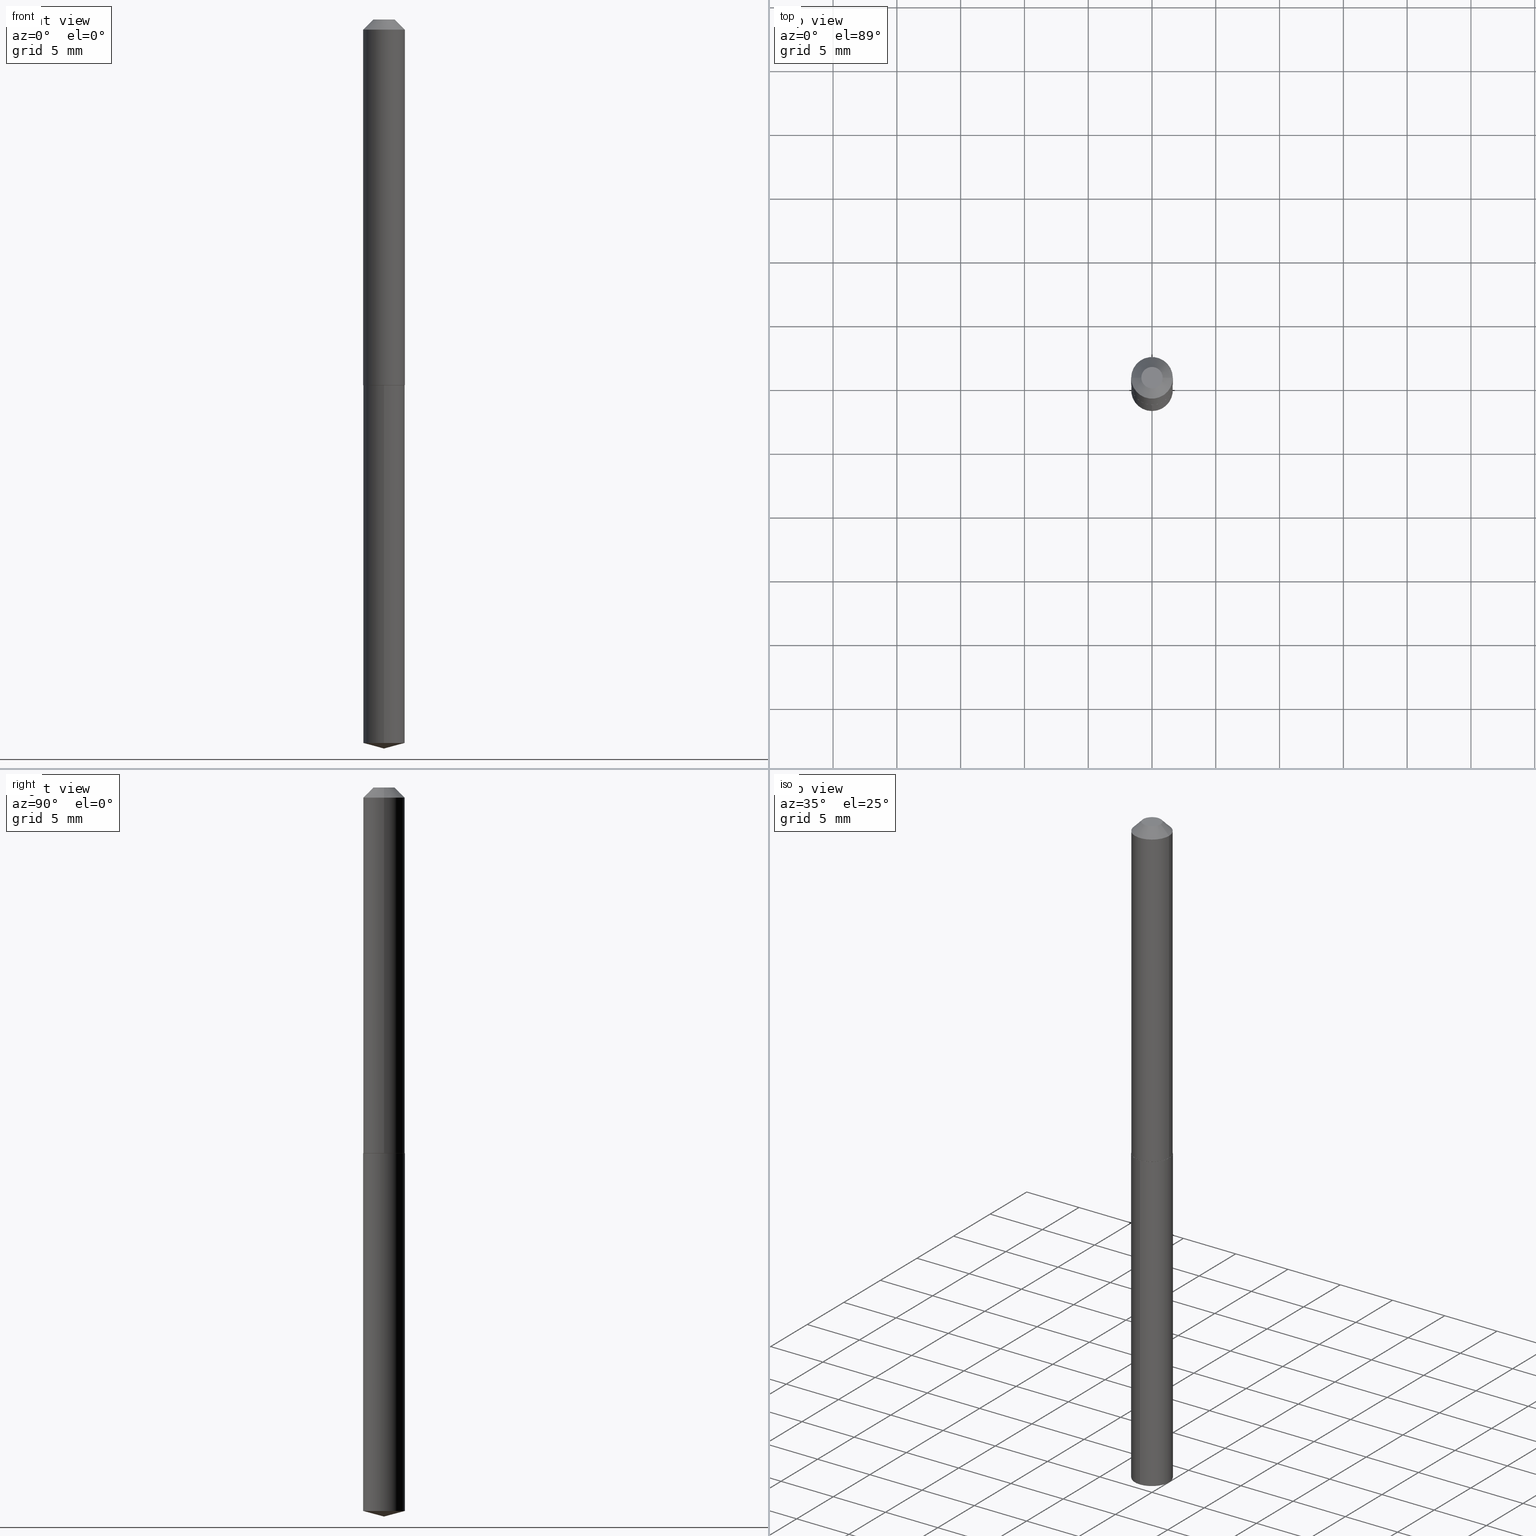
[diagram: canonical four-view strip — front | top / right | iso, engineering-drawing reading convention]
A machine part, canonical four-view strip (front | top / right | iso — engineering-drawing reading convention). The complete STEP part file that produces these views, byte-faithful:
ISO-10303-21;
HEADER;
FILE_DESCRIPTION (( 'STEP AP203' ),
    '1' );
FILE_NAME ('58019.STEP',
    '2024-04-23T00:18:26',
    ( '' ),
    ( '' ),
    'SwSTEP 2.0',
    'SolidWorks 2023',
    '' );
FILE_SCHEMA (( 'CONFIG_CONTROL_DESIGN' ));
ENDSEC;

DATA;
#1 = VECTOR ( 'NONE', #84, 39.37007874015748143 ) ;
#2 = CIRCLE ( 'NONE', #100, 0.06425000000000014033 ) ;
#3 = APPROVAL_PERSON_ORGANIZATION ( #273, #246, #69 ) ;
#4 = ORIENTED_EDGE ( 'NONE', *, *, #238, .F. ) ;
#5 = LINE ( 'NONE', #247, #168 ) ;
#6 = DIRECTION ( 'NONE',  ( -2.445468806185136597E-29, 3.491481338843145583E-15, 1.000000000000000000 ) ) ;
#7 = VERTEX_POINT ( 'NONE', #208 ) ;
#8 = EDGE_CURVE ( 'NONE', #7, #386, #365, .T. ) ;
#9 = DIRECTION ( 'NONE',  ( 1.000000000000000000, -6.982962677686265922E-15, 4.876176775795935793E-29 ) ) ;
#10 = CARTESIAN_POINT ( 'NONE',  ( 5.461164970613019444E-29, -7.794348814090572304E-15, -2.232784264386300066 ) ) ;
#11 = CIRCLE ( 'NONE', #109, 0.06425000000000000155 ) ;
#12 = PLANE ( 'NONE',  #29 ) ;
#13 = DIRECTION ( 'NONE',  ( -6.982962677686265922E-15, -1.000000000000000000, 4.251903492084456561E-15 ) ) ;
#14 = FACE_OUTER_BOUND ( 'NONE', #299, .T. ) ;
#15 = EDGE_CURVE ( 'NONE', #274, #361, #306, .T. ) ;
#16 = AXIS2_PLACEMENT_3D ( 'NONE', #10, #25, #13 ) ;
#17 = CIRCLE ( 'NONE', #343, 0.06425000000000000155 ) ;
#18 = CARTESIAN_POINT ( 'NONE',  ( -0.06425000000000014033, -3.481867242489202090E-15, -1.127999999999999892 ) ) ;
#19 = EDGE_CURVE ( 'NONE', #171, #386, #5, .T. ) ;
#20 = CARTESIAN_POINT ( 'NONE',  ( 2.758488813376833799E-29, -3.938390950215067457E-15, -1.127999999999999892 ) ) ;
#21 = AXIS2_PLACEMENT_3D ( 'NONE', #70, #336, #43 ) ;
#22 = PRODUCT_DEFINITION_FORMATION_WITH_SPECIFIED_SOURCE ( 'ANY', '', #347, .NOT_KNOWN. ) ;
#23 = EDGE_LOOP ( 'NONE', ( #36, #241, #298, #59 ) ) ;
#24 = DIRECTION ( 'NONE',  ( 0.7071067811864509833, -2.468850131081245741E-15, 0.7071067811866440511 ) ) ;
#25 = DIRECTION ( 'NONE',  ( -2.446338782464142436E-29, 3.490235483295634574E-15, 1.000000000000000000 ) ) ;
#26 = CYLINDRICAL_SURFACE ( 'NONE', #275, 0.06425000000000000155 ) ;
#27 = DIRECTION ( 'NONE',  ( 2.446338782464142155E-29, -3.490235483295634574E-15, -1.000000000000000000 ) ) ;
#28 = DIRECTION ( 'NONE',  ( 1.000000000000000000, -6.982962677686269077E-15, 0.000000000000000000 ) ) ;
#29 = AXIS2_PLACEMENT_3D ( 'NONE', #284, #313, #215 ) ;
#30 = ORIENTED_EDGE ( 'NONE', *, *, #19, .F. ) ;
#31 = VECTOR ( 'NONE', #332, 39.37007874015748143 ) ;
#32 =( NAMED_UNIT ( * ) SI_UNIT ( $, .STERADIAN. ) SOLID_ANGLE_UNIT ( ) );
#33 = CARTESIAN_POINT ( 'NONE',  ( 0.03300000000000000155, -3.881461110610652654E-16, 2.143131898529498783E-19 ) ) ;
#34 = ADVANCED_FACE ( 'NONE', ( #244 ), #97, .T. ) ;
#35 = ORIENTED_EDGE ( 'NONE', *, *, #141, .T. ) ;
#36 = ORIENTED_EDGE ( 'NONE', *, *, #8, .T. ) ;
#37 = CALENDAR_DATE ( 2024, 22, 4 ) ;
#38 = AXIS2_PLACEMENT_3D ( 'NONE', #288, #325, #320 ) ;
#39 = PRODUCT_DEFINITION_SHAPE ( 'NONE', 'NONE',  #371 ) ;
#40 = ORIENTED_EDGE ( 'NONE', *, *, #51, .F. ) ;
#41 = ADVANCED_FACE ( 'NONE', ( #129 ), #369, .T. ) ;
#42 = ORIENTED_EDGE ( 'NONE', *, *, #374, .F. ) ;
#43 = DIRECTION ( 'NONE',  ( -6.982962677686265922E-15, -1.000000000000000000, 4.251903492084456561E-15 ) ) ;
#44 = CLOSED_SHELL ( 'NONE', ( #191, #34, #223, #74, #308, #255, #218, #77 ) ) ;
#45 = CC_DESIGN_PERSON_AND_ORGANIZATION_ASSIGNMENT ( #341, #76, ( #178 ) ) ;
#46 = EDGE_LOOP ( 'NONE', ( #307, #80, #153, #122 ) ) ;
#47 = VECTOR ( 'NONE', #322, 39.37007874015748143 ) ;
#48 = CC_DESIGN_SECURITY_CLASSIFICATION ( #178, ( #22 ) ) ;
#49 = DIRECTION ( 'NONE',  ( -1.000000000000000000, 6.982962677686265922E-15, -4.876176775795935793E-29 ) ) ;
#50 = CARTESIAN_POINT ( 'NONE',  ( 7.642090019328601786E-31, -1.091087918388490144E-16, -0.03125000000000020123 ) ) ;
#51 = EDGE_CURVE ( 'NONE', #171, #7, #75, .T. ) ;
#52 = DIRECTION ( 'NONE',  ( -2.446338782464142436E-29, 3.490235483295634574E-15, 1.000000000000000000 ) ) ;
#53 = CARTESIAN_POINT ( 'NONE',  ( 0.06375000000000011213, -4.385300561586989725E-15, -1.128500000000000059 ) ) ;
#54 = PRODUCT_RELATED_PRODUCT_CATEGORY ( 'detail', '', ( #347 ) ) ;
#55 = LOCAL_TIME ( 20, 18, 26.00000000000000000, #130 ) ;
#56 = CC_DESIGN_APPROVAL ( #189, ( #22 ) ) ;
#57 = CARTESIAN_POINT ( 'NONE',  ( 2.759711547779926600E-29, -3.940136690884488960E-15, -1.128499999999999837 ) ) ;
#58 = PERSON ( 'UNSPECIFIED', 'UNSPECIFIED', 'UNSPECIFIED', ('UNSPECIFIED'), ('UNSPECIFIED'), ('UNSPECIFIED') ) ;
#59 = ORIENTED_EDGE ( 'NONE', *, *, #327, .F. ) ;
#60 = DIRECTION ( 'NONE',  ( 2.445468806185136597E-29, -3.491481338843145583E-15, -1.000000000000000000 ) ) ;
#61 = VERTEX_POINT ( 'NONE', #253 ) ;
#62 = CARTESIAN_POINT ( 'NONE',  ( -0.06425000000000007094, 4.565237077258648735E-16, -3.160415795488780682E-30 ) ) ;
#63 = EDGE_LOOP ( 'NONE', ( #360, #230 ) ) ;
#64 = LENGTH_MEASURE_WITH_UNIT ( LENGTH_MEASURE( 0.02539999999999999897 ), #204 );
#65 = ORIENTED_EDGE ( 'NONE', *, *, #90, .T. ) ;
#66 = CARTESIAN_POINT ( 'NONE',  ( -5.240962205341342773E-48, 7.482705030319734133E-34, 2.143131898507876849E-19 ) ) ;
#67 = CC_DESIGN_DATE_AND_TIME_ASSIGNMENT ( #385, #362, ( #371 ) ) ;
#68 = AXIS2_PLACEMENT_3D ( 'NONE', #154, #235, #196 ) ;
#69 = APPROVAL_ROLE ( '' ) ;
#70 = CARTESIAN_POINT ( 'NONE',  ( 5.461164970613019444E-29, -7.794348814090572304E-15, -2.232784264386300066 ) ) ;
#71 = PERSON_AND_ORGANIZATION_ROLE ( 'creator' ) ;
#72 = LINE ( 'NONE', #220, #159 ) ;
#73 = AXIS2_PLACEMENT_3D ( 'NONE', #57, #376, #323 ) ;
#74 = ADVANCED_FACE ( 'NONE', ( #314 ), #12, .F. ) ;
#75 = LINE ( 'NONE', #190, #123 ) ;
#76 = PERSON_AND_ORGANIZATION_ROLE ( 'classification_officer' ) ;
#77 = ADVANCED_FACE ( 'NONE', ( #14 ), #104, .F. ) ;
#78 = CARTESIAN_POINT ( 'NONE',  ( -4.486553520413150773E-16, -0.06425000000000394285, -1.128499999999999615 ) ) ;
#79 = CONICAL_SURFACE ( 'NONE', #240, 0.06425000000000014033, 0.7853981633973118326 ) ;
#80 = ORIENTED_EDGE ( 'NONE', *, *, #354, .T. ) ;
#81 = LINE ( 'NONE', #352, #1 ) ;
#82 = CARTESIAN_POINT ( 'NONE',  ( 0.06425000000000000155, -5.577641438801915909E-16, -0.03125000000000020123 ) ) ;
#83 = CARTESIAN_POINT ( 'NONE',  ( 4.565237077259191077E-16, 0.06424999999999606026, -1.128500000000000059 ) ) ;
#84 = DIRECTION ( 'NONE',  ( -0.7071067811865452413, 2.468850131082233000E-15, -0.7071067811865497932 ) ) ;
#85 = CONICAL_SURFACE ( 'NONE', #366, 0.06425000000000014033, 0.7853981633973118326 ) ;
#86 = ORIENTED_EDGE ( 'NONE', *, *, #185, .T. ) ;
#87 = CARTESIAN_POINT ( 'NONE',  ( 0.000000000000000000, 0.000000000000000000, 0.000000000000000000 ) ) ;
#88 = APPROVAL_DATE_TIME ( #91, #189 ) ;
#89 = VERTEX_POINT ( 'NONE', #136 ) ;
#90 = EDGE_CURVE ( 'NONE', #331, #384, #167, .T. ) ;
#91 = DATE_AND_TIME ( #335, #101 ) ;
#92 = EDGE_LOOP ( 'NONE', ( #179, #184, #117, #202 ) ) ;
#93 = VECTOR ( 'NONE', #24, 39.37007874015748143 ) ;
#94 = PLANE ( 'NONE',  #162 ) ;
#95 = VERTEX_POINT ( 'NONE', #226 ) ;
#96 = PERSON_AND_ORGANIZATION_ROLE ( 'creator' ) ;
#97 = CYLINDRICAL_SURFACE ( 'NONE', #134, 0.06425000000000007094 ) ;
#98 = CARTESIAN_POINT ( 'NONE',  ( 2.759711547779926600E-29, -3.940136690884488960E-15, -1.128499999999999837 ) ) ;
#99 = EDGE_CURVE ( 'NONE', #361, #146, #293, .T. ) ;
#100 = AXIS2_PLACEMENT_3D ( 'NONE', #132, #6, #28 ) ;
#101 = LOCAL_TIME ( 20, 18, 26.00000000000000000, #152 ) ;
#102 = EDGE_CURVE ( 'NONE', #386, #201, #72, .T. ) ;
#103 = APPROVAL_DATE_TIME ( #213, #262 ) ;
#104 = PLANE ( 'NONE',  #281 ) ;
#105 = ORIENTED_EDGE ( 'NONE', *, *, #157, .F. ) ;
#106 = DIRECTION ( 'NONE',  ( -2.445468806185136597E-29, 3.491481338843145583E-15, 1.000000000000000000 ) ) ;
#107 = LINE ( 'NONE', #194, #93 ) ;
#108 = AXIS2_PLACEMENT_3D ( 'NONE', #50, #60, #195 ) ;
#109 = AXIS2_PLACEMENT_3D ( 'NONE', #225, #52, #380 ) ;
#110 = CALENDAR_DATE ( 2024, 22, 4 ) ;
#111 = FACE_OUTER_BOUND ( 'NONE', #358, .T. ) ;
#112 = FACE_OUTER_BOUND ( 'NONE', #203, .T. ) ;
#113 = CARTESIAN_POINT ( 'NONE',  ( 7.642090019328601786E-31, -1.091087918388490144E-16, -0.03125000000000020123 ) ) ;
#114 = AXIS2_PLACEMENT_3D ( 'NONE', #139, #120, #326 ) ;
#115 = CARTESIAN_POINT ( 'NONE',  ( 0.000000000000000000, 0.000000000000000000, 0.000000000000000000 ) ) ;
#116 = EDGE_CURVE ( 'NONE', #386, #7, #182, .T. ) ;
#117 = ORIENTED_EDGE ( 'NONE', *, *, #200, .T. ) ;
#118 = APPROVAL_DATE_TIME ( #387, #246 ) ;
#119 = ORIENTED_EDGE ( 'NONE', *, *, #116, .T. ) ;
#120 = DIRECTION ( 'NONE',  ( -2.445468806185136597E-29, 3.491481338843145583E-15, 1.000000000000000000 ) ) ;
#121 =( NAMED_UNIT ( * ) PLANE_ANGLE_UNIT ( ) SI_UNIT ( $, .RADIAN. ) );
#122 = ORIENTED_EDGE ( 'NONE', *, *, #249, .F. ) ;
#123 = VECTOR ( 'NONE', #316, 39.37007874015748854 ) ;
#124 = CONICAL_SURFACE ( 'NONE', #38, 146.9311341562558084, 1.308996938995748538 ) ;
#125 = PERSON_AND_ORGANIZATION ( #58, #350 ) ;
#126 = EDGE_LOOP ( 'NONE', ( #261, #86, #165, #373 ) ) ;
#127 = DIRECTION ( 'NONE',  ( 6.863315791527694259E-15, 0.9659258262890694224, 0.2588190451025160765 ) ) ;
#128 = PERSON_AND_ORGANIZATION ( #58, #350 ) ;
#129 = FACE_OUTER_BOUND ( 'NONE', #180, .T. ) ;
#130 = COORDINATED_UNIVERSAL_TIME_OFFSET ( 5, 0, .BEHIND. ) ;
#131 = CARTESIAN_POINT ( 'NONE',  ( 0.06425000000000000155, -5.498957881956698978E-16, -0.03125000000000020123 ) ) ;
#132 = CARTESIAN_POINT ( 'NONE',  ( 2.758488813376833799E-29, -3.938390950215067457E-15, -1.127999999999999892 ) ) ;
#133 = CARTESIAN_POINT ( 'NONE',  ( -2.620481102670671386E-48, 3.741352515159867067E-34, 1.071565949253938424E-19 ) ) ;
#134 = AXIS2_PLACEMENT_3D ( 'NONE', #210, #279, #9 ) ;
#135 = DIRECTION ( 'NONE',  ( -2.446338782464142436E-29, 3.490235483295634574E-15, 1.000000000000000000 ) ) ;
#136 = CARTESIAN_POINT ( 'NONE',  ( -0.06425000000000000155, -1.567226163301092518E-15, -0.03125000000000020123 ) ) ;
#137 = DIRECTION ( 'NONE',  ( 2.445468806185136597E-29, -3.491481338843145583E-15, -1.000000000000000000 ) ) ;
#138 = DIMENSIONAL_EXPONENTS ( 1.000000000000000000, 0.000000000000000000, 0.000000000000000000, 0.000000000000000000, 0.000000000000000000, 0.000000000000000000, 0.000000000000000000 ) ;
#139 = CARTESIAN_POINT ( 'NONE',  ( 2.759711547779926600E-29, -3.940136690884489749E-15, -1.128500000000000059 ) ) ;
#140 = DIRECTION ( 'NONE',  ( -2.445468806185136597E-29, 3.491481338843145583E-15, 1.000000000000000000 ) ) ;
#141 = EDGE_CURVE ( 'NONE', #384, #331, #2, .T. ) ;
#142 = EDGE_LOOP ( 'NONE', ( #35, #355, #272, #105 ) ) ;
#143 = CYLINDRICAL_SURFACE ( 'NONE', #224, 0.06425000000000007094 ) ;
#144 = DIRECTION ( 'NONE',  ( -2.446338782464142436E-29, 3.490235483295634574E-15, 1.000000000000000000 ) ) ;
#145 = CLOSED_SHELL ( 'NONE', ( #294, #270, #283, #41, #379 ) ) ;
#146 = VERTEX_POINT ( 'NONE', #82 ) ;
#147 = MECHANICAL_CONTEXT ( 'NONE', #260, 'mechanical' ) ;
#148 = DIRECTION ( 'NONE',  ( -2.445468806185136877E-29, 3.491481338843145188E-15, 1.000000000000000000 ) ) ;
#149 = EDGE_LOOP ( 'NONE', ( #303, #351 ) ) ;
#150 = APPLICATION_PROTOCOL_DEFINITION ( 'international standard', 'config_control_design', 1994, #260 ) ;
#151 = APPROVAL_PERSON_ORGANIZATION ( #271, #189, #209 ) ;
#152 = COORDINATED_UNIVERSAL_TIME_OFFSET ( 5, 0, .BEHIND. ) ;
#153 = ORIENTED_EDGE ( 'NONE', *, *, #141, .F. ) ;
#154 = CARTESIAN_POINT ( 'NONE',  ( -5.240962205341342773E-48, 7.482705030319734133E-34, 2.143131898507876849E-19 ) ) ;
#155 = DIRECTION ( 'NONE',  ( -2.446338782464142436E-29, 3.490235483295634574E-15, 1.000000000000000000 ) ) ;
#156 = APPROVAL_ROLE ( '' ) ;
#157 = EDGE_CURVE ( 'NONE', #384, #146, #390, .T. ) ;
#158 = DIRECTION ( 'NONE',  ( 1.000000000000000000, -6.982962677686268288E-15, 4.876144659811843154E-29 ) ) ;
#159 = VECTOR ( 'NONE', #155, 39.37007874015748143 ) ;
#160 = ORIENTED_EDGE ( 'NONE', *, *, #15, .T. ) ;
#161 = EDGE_CURVE ( 'NONE', #361, #274, #378, .T. ) ;
#162 = AXIS2_PLACEMENT_3D ( 'NONE', #98, #27, #176 ) ;
#163 = DIRECTION ( 'NONE',  ( -2.445468806185136597E-29, 3.491481338843145583E-15, 1.000000000000000000 ) ) ;
#164 = CARTESIAN_POINT ( 'NONE',  ( -9.080926999840079962E-28, 1.295564100136401829E-13, 37.12007874015748143 ) ) ;
#165 = ORIENTED_EDGE ( 'NONE', *, *, #249, .T. ) ;
#166 = DIRECTION ( 'NONE',  ( -2.445468806185136597E-29, 3.491481338843145583E-15, 1.000000000000000000 ) ) ;
#167 = CIRCLE ( 'NONE', #342, 0.06425000000000014033 ) ;
#168 = VECTOR ( 'NONE', #127, 39.37007874015748143 ) ;
#169 = ORIENTED_EDGE ( 'NONE', *, *, #8, .F. ) ;
#170 = CARTESIAN_POINT ( 'NONE',  ( 2.758488813376833799E-29, -3.938390950215067457E-15, -1.127999999999999892 ) ) ;
#171 = VERTEX_POINT ( 'NONE', #329 ) ;
#172 = DIRECTION ( 'NONE',  ( -2.445468806185136597E-29, 3.491481338843145583E-15, 1.000000000000000000 ) ) ;
#173 = ORIENTED_EDGE ( 'NONE', *, *, #19, .T. ) ;
#174 = ADVANCED_BREP_SHAPE_REPRESENTATION ( '58019', ( #237, #219, #317 ), #330 ) ;
#175 = ORIENTED_EDGE ( 'NONE', *, *, #116, .F. ) ;
#176 = DIRECTION ( 'NONE',  ( 6.982962677686265922E-15, 1.000000000000000000, -3.490235483295634574E-15 ) ) ;
#177 = CIRCLE ( 'NONE', #73, 0.06425000000000000155 ) ;
#178 = SECURITY_CLASSIFICATION ( '', '', #344 ) ;
#179 = ORIENTED_EDGE ( 'NONE', *, *, #99, .F. ) ;
#180 = EDGE_LOOP ( 'NONE', ( #309, #119, #295, #4 ) ) ;
#181 = PERSON_AND_ORGANIZATION ( #58, #350 ) ;
#182 = CIRCLE ( 'NONE', #16, 0.06425000000000000155 ) ;
#183 = CALENDAR_DATE ( 2024, 22, 4 ) ;
#184 = ORIENTED_EDGE ( 'NONE', *, *, #15, .F. ) ;
#185 = EDGE_CURVE ( 'NONE', #61, #207, #315, .T. ) ;
#186 = DIRECTION ( 'NONE',  ( -2.446338782464142436E-29, 3.490235483295634574E-15, 1.000000000000000000 ) ) ;
#187 = CIRCLE ( 'NONE', #290, 0.06375000000000011213 ) ;
#188 = CALENDAR_DATE ( 2024, 22, 4 ) ;
#189 = APPROVAL ( #234, 'UNSPECIFIED' ) ;
#190 = CARTESIAN_POINT ( 'NONE',  ( 5.502298724082603769E-29, -7.855841733385909290E-15, -2.249999999999999556 ) ) ;
#191 = ADVANCED_FACE ( 'NONE', ( #112 ), #205, .T. ) ;
#192 = DIRECTION ( 'NONE',  ( -2.446338782464142436E-29, 3.490235483295634574E-15, 1.000000000000000000 ) ) ;
#193 = CARTESIAN_POINT ( 'NONE',  ( 2.759711547779926600E-29, -3.940136690884489749E-15, -1.128500000000000059 ) ) ;
#194 = CARTESIAN_POINT ( 'NONE',  ( 0.06425000000000014033, -4.387046302256411229E-15, -1.127999999999999892 ) ) ;
#195 = DIRECTION ( 'NONE',  ( -1.000000000000000000, 6.982962677686265922E-15, 0.000000000000000000 ) ) ;
#196 = DIRECTION ( 'NONE',  ( 1.000000000000000000, -6.982962677686268288E-15, 4.876144659811843154E-29 ) ) ;
#197 = VECTOR ( 'NONE', #192, 39.37007874015748143 ) ;
#198 = CC_DESIGN_PERSON_AND_ORGANIZATION_ASSIGNMENT ( #242, #96, ( #371 ) ) ;
#199 = CARTESIAN_POINT ( 'NONE',  ( 2.759711547779926600E-29, -3.940136690884488960E-15, -1.128499999999999837 ) ) ;
#200 = EDGE_CURVE ( 'NONE', #274, #89, #81, .T. ) ;
#201 = VERTEX_POINT ( 'NONE', #83 ) ;
#202 = ORIENTED_EDGE ( 'NONE', *, *, #233, .T. ) ;
#203 = EDGE_LOOP ( 'NONE', ( #333, #277, #265, #388 ) ) ;
#204 =( LENGTH_UNIT ( ) NAMED_UNIT ( * ) SI_UNIT ( $, .METRE. ) );
#205 = CONICAL_SURFACE ( 'NONE', #108, 0.06425000000000000155, 0.7853981633974450594 ) ;
#206 = LOCAL_TIME ( 20, 18, 26.00000000000000000, #364 ) ;
#207 = VERTEX_POINT ( 'NONE', #53 ) ;
#208 = CARTESIAN_POINT ( 'NONE',  ( -4.486553520412880588E-16, -0.06425000000000780087, -2.232784264386300066 ) ) ;
#209 = APPROVAL_ROLE ( '' ) ;
#210 = CARTESIAN_POINT ( 'NONE',  ( 0.000000000000000000, 0.000000000000000000, 0.000000000000000000 ) ) ;
#211 = DIRECTION ( 'NONE',  ( -2.445468806185136597E-29, 3.491481338843145583E-15, 1.000000000000000000 ) ) ;
#212 = SHAPE_DEFINITION_REPRESENTATION ( #39, #174 ) ;
#213 = DATE_AND_TIME ( #110, #55 ) ;
#214 = CONICAL_SURFACE ( 'NONE', #338, 146.9311341562558084, 1.308996938995748538 ) ;
#215 = DIRECTION ( 'NONE',  ( 1.000000000000000000, -6.982962677686265922E-15, 4.876176775795935793E-29 ) ) ;
#216 = LOCAL_TIME ( 20, 18, 26.00000000000000000, #319 ) ;
#217 = LOCAL_TIME ( 20, 18, 26.00000000000000000, #266 ) ;
#218 = ADVANCED_FACE ( 'NONE', ( #259 ), #258, .T. ) ;
#219 = MANIFOLD_SOLID_BREP ( 'Body-Move/Copy2[2]', #44 ) ;
#220 = CARTESIAN_POINT ( 'NONE',  ( 4.565237077258918920E-16, 0.06424999999999606026, -1.128500000000000059 ) ) ;
#221 = FACE_OUTER_BOUND ( 'NONE', #23, .T. ) ;
#222 = DIRECTION ( 'NONE',  ( -6.982962677686265922E-15, -1.000000000000000000, 4.251903492084456561E-15 ) ) ;
#223 = ADVANCED_FACE ( 'NONE', ( #383 ), #79, .T. ) ;
#224 = AXIS2_PLACEMENT_3D ( 'NONE', #87, #163, #296 ) ;
#225 = CARTESIAN_POINT ( 'NONE',  ( 2.759711547779926600E-29, -3.940136690884488960E-15, -1.128499999999999837 ) ) ;
#226 = CARTESIAN_POINT ( 'NONE',  ( -4.486553520413150773E-16, -0.06425000000000394285, -1.128499999999999615 ) ) ;
#227 = LINE ( 'NONE', #276, #251 ) ;
#228 = ORIENTED_EDGE ( 'NONE', *, *, #157, .T. ) ;
#229 = DIRECTION ( 'NONE',  ( -1.000000000000000000, 6.982962677686265922E-15, 0.000000000000000000 ) ) ;
#230 = ORIENTED_EDGE ( 'NONE', *, *, #185, .F. ) ;
#231 = DIRECTION ( 'NONE',  ( 1.000000000000000000, -6.982962677686263555E-15, 0.000000000000000000 ) ) ;
#232 = VECTOR ( 'NONE', #148, 39.37007874015748143 ) ;
#233 = EDGE_CURVE ( 'NONE', #89, #146, #301, .T. ) ;
#234 = APPROVAL_STATUS ( 'not_yet_approved' ) ;
#235 = DIRECTION ( 'NONE',  ( -2.445468806185136597E-29, 3.491481338843145583E-15, 1.000000000000000000 ) ) ;
#236 = CARTESIAN_POINT ( 'NONE',  ( 0.06425000000000014033, -4.387046302256411229E-15, -1.127999999999999892 ) ) ;
#237 = MANIFOLD_SOLID_BREP ( 'Body-Move/Copy2[1]', #145 ) ;
#238 = EDGE_CURVE ( 'NONE', #201, #95, #177, .T. ) ;
#239 = DIRECTION ( 'NONE',  ( 1.000000000000000000, 0.000000000000000000, 0.000000000000000000 ) ) ;
#240 = AXIS2_PLACEMENT_3D ( 'NONE', #170, #166, #353 ) ;
#241 = ORIENTED_EDGE ( 'NONE', *, *, #102, .T. ) ;
#242 = PERSON_AND_ORGANIZATION ( #58, #350 ) ;
#243 = EDGE_LOOP ( 'NONE', ( #30, #268, #175 ) ) ;
#244 = FACE_OUTER_BOUND ( 'NONE', #142, .T. ) ;
#245 = APPLICATION_PROTOCOL_DEFINITION ( 'international standard', 'config_control_design', 1994, #282 ) ;
#246 = APPROVAL ( #337, 'UNSPECIFIED' ) ;
#247 = CARTESIAN_POINT ( 'NONE',  ( 5.504279478441319570E-29, -7.853029837415177100E-15, -2.249999999999999556 ) ) ;
#248 = PERSON_AND_ORGANIZATION_ROLE ( 'design_supplier' ) ;
#249 = EDGE_CURVE ( 'NONE', #207, #384, #107, .T. ) ;
#250 = AXIS2_PLACEMENT_3D ( 'NONE', #382, #137, #229 ) ;
#251 = VECTOR ( 'NONE', #328, 39.37007874015748143 ) ;
#252 = CC_DESIGN_APPROVAL ( #246, ( #371 ) ) ;
#253 = CARTESIAN_POINT ( 'NONE',  ( -0.06375000000000011213, -3.484516469663313686E-15, -1.128500000000000059 ) ) ;
#254 = DIRECTION ( 'NONE',  ( -6.982962677686265922E-15, -1.000000000000000000, 4.251903492084456561E-15 ) ) ;
#255 = ADVANCED_FACE ( 'NONE', ( #111 ), #143, .T. ) ;
#256 = CARTESIAN_POINT ( 'NONE',  ( 2.758488813376833799E-29, -3.938390950215067457E-15, -1.127999999999999892 ) ) ;
#257 = FACE_OUTER_BOUND ( 'NONE', #126, .T. ) ;
#258 = CONICAL_SURFACE ( 'NONE', #250, 0.06425000000000000155, 0.7853981633974450594 ) ;
#259 = FACE_OUTER_BOUND ( 'NONE', #92, .T. ) ;
#260 = APPLICATION_CONTEXT ( 'configuration controlled 3d designs of mechanical parts and assemblies' ) ;
#261 = ORIENTED_EDGE ( 'NONE', *, *, #354, .F. ) ;
#262 = APPROVAL ( #280, 'UNSPECIFIED' ) ;
#263 = DIRECTION ( 'NONE',  ( -6.982962677686266711E-15, -1.000000000000000000, 3.510303681827621500E-15 ) ) ;
#264 = CARTESIAN_POINT ( 'NONE',  ( -0.03300000000000000155, 2.849921642830702198E-16, 2.143131898489856644E-19 ) ) ;
#265 = ORIENTED_EDGE ( 'NONE', *, *, #311, .T. ) ;
#266 = COORDINATED_UNIVERSAL_TIME_OFFSET ( 5, 0, .BEHIND. ) ;
#267 = APPROVAL_PERSON_ORGANIZATION ( #310, #262, #156 ) ;
#268 = ORIENTED_EDGE ( 'NONE', *, *, #51, .T. ) ;
#269 = PERSON_AND_ORGANIZATION_ROLE ( 'design_owner' ) ;
#270 = ADVANCED_FACE ( 'NONE', ( #297 ), #214, .T. ) ;
#271 = PERSON_AND_ORGANIZATION ( #58, #350 ) ;
#272 = ORIENTED_EDGE ( 'NONE', *, *, #311, .F. ) ;
#273 = PERSON_AND_ORGANIZATION ( #58, #350 ) ;
#274 = VERTEX_POINT ( 'NONE', #264 ) ;
#275 = AXIS2_PLACEMENT_3D ( 'NONE', #199, #135, #254 ) ;
#276 = CARTESIAN_POINT ( 'NONE',  ( -0.06425000000000014033, -3.481867242489202090E-15, -1.127999999999999892 ) ) ;
#277 = ORIENTED_EDGE ( 'NONE', *, *, #99, .T. ) ;
#278 = EDGE_CURVE ( 'NONE', #207, #61, #187, .T. ) ;
#279 = DIRECTION ( 'NONE',  ( -2.445468806185136597E-29, 3.491481338843145583E-15, 1.000000000000000000 ) ) ;
#280 = APPROVAL_STATUS ( 'not_yet_approved' ) ;
#281 = AXIS2_PLACEMENT_3D ( 'NONE', #133, #372, #49 ) ;
#282 = APPLICATION_CONTEXT ( 'configuration controlled 3d designs of mechanical parts and assemblies' ) ;
#283 = ADVANCED_FACE ( 'NONE', ( #359 ), #124, .T. ) ;
#284 = CARTESIAN_POINT ( 'NONE',  ( 2.759711547779926600E-29, -3.940136690884489749E-15, -1.128500000000000059 ) ) ;
#285 = CC_DESIGN_DATE_AND_TIME_ASSIGNMENT ( #287, #370, ( #178 ) ) ;
#286 = DIRECTION ( 'NONE',  ( 1.000000000000000000, -6.982962677686269077E-15, 0.000000000000000000 ) ) ;
#287 = DATE_AND_TIME ( #188, #216 ) ;
#288 = CARTESIAN_POINT ( 'NONE',  ( -9.080926999840079962E-28, 1.295564100136401829E-13, 37.12007874015748143 ) ) ;
#289 = ORIENTED_EDGE ( 'NONE', *, *, #161, .T. ) ;
#290 = AXIS2_PLACEMENT_3D ( 'NONE', #193, #356, #231 ) ;
#291 = CC_DESIGN_APPROVAL ( #262, ( #178 ) ) ;
#292 = DIRECTION ( 'NONE',  ( 1.000000000000000000, -6.982962677686265922E-15, 0.000000000000000000 ) ) ;
#293 = LINE ( 'NONE', #131, #47 ) ;
#294 = ADVANCED_FACE ( 'NONE', ( #221 ), #26, .T. ) ;
#295 = ORIENTED_EDGE ( 'NONE', *, *, #327, .T. ) ;
#296 = DIRECTION ( 'NONE',  ( 1.000000000000000000, -6.982962677686265922E-15, 4.876176775795935793E-29 ) ) ;
#297 = FACE_OUTER_BOUND ( 'NONE', #339, .T. ) ;
#298 = ORIENTED_EDGE ( 'NONE', *, *, #346, .F. ) ;
#299 = EDGE_LOOP ( 'NONE', ( #160, #289 ) ) ;
#300 = CARTESIAN_POINT ( 'NONE',  ( 4.565237077259190091E-16, 0.06424999999999221612, -2.232784264386300510 ) ) ;
#301 = CIRCLE ( 'NONE', #349, 0.06425000000000000155 ) ;
#302 = DESIGN_CONTEXT ( 'detailed design', #282, 'design' ) ;
#303 = ORIENTED_EDGE ( 'NONE', *, *, #346, .T. ) ;
#304 =( CONVERSION_BASED_UNIT ( 'INCH', #64 ) LENGTH_UNIT ( ) NAMED_UNIT ( #138 ) );
#305 = ORIENTED_EDGE ( 'NONE', *, *, #233, .F. ) ;
#306 = CIRCLE ( 'NONE', #312, 0.03300000000000000155 ) ;
#307 = ORIENTED_EDGE ( 'NONE', *, *, #278, .T. ) ;
#308 = ADVANCED_FACE ( 'NONE', ( #257 ), #85, .T. ) ;
#309 = ORIENTED_EDGE ( 'NONE', *, *, #102, .F. ) ;
#310 = PERSON_AND_ORGANIZATION ( #58, #350 ) ;
#311 = EDGE_CURVE ( 'NONE', #146, #89, #17, .T. ) ;
#312 = AXIS2_PLACEMENT_3D ( 'NONE', #66, #211, #158 ) ;
#313 = DIRECTION ( 'NONE',  ( -2.438088387897960049E-29, 3.491481338843145188E-15, 1.000000000000000000 ) ) ;
#314 = FACE_OUTER_BOUND ( 'NONE', #63, .T. ) ;
#315 = CIRCLE ( 'NONE', #114, 0.06375000000000011213 ) ;
#316 = DIRECTION ( 'NONE',  ( -6.745023994389839133E-15, -0.9659258262890676461, 0.2588190451025227934 ) ) ;
#317 = AXIS2_PLACEMENT_3D ( 'NONE', #115, #389, #239 ) ;
#318 = CARTESIAN_POINT ( 'NONE',  ( 7.642090019328601786E-31, -1.091087918388490144E-16, -0.03125000000000020123 ) ) ;
#319 = COORDINATED_UNIVERSAL_TIME_OFFSET ( 5, 0, .BEHIND. ) ;
#320 = DIRECTION ( 'NONE',  ( -6.982962677686266711E-15, -1.000000000000000000, 3.510303681827621500E-15 ) ) ;
#321 = CC_DESIGN_PERSON_AND_ORGANIZATION_ASSIGNMENT ( #128, #248, ( #22 ) ) ;
#322 = DIRECTION ( 'NONE',  ( 0.7071067811865452413, -7.319954787623248157E-15, -0.7071067811865497932 ) ) ;
#323 = DIRECTION ( 'NONE',  ( -6.982962677686265922E-15, -1.000000000000000000, 4.251903492084456561E-15 ) ) ;
#324 = AXIS2_PLACEMENT_3D ( 'NONE', #340, #186, #222 ) ;
#325 = DIRECTION ( 'NONE',  ( -2.446338782464142436E-29, 3.490235483295634574E-15, 1.000000000000000000 ) ) ;
#326 = DIRECTION ( 'NONE',  ( 1.000000000000000000, -6.982962677686263555E-15, 0.000000000000000000 ) ) ;
#327 = EDGE_CURVE ( 'NONE', #7, #95, #377, .T. ) ;
#328 = DIRECTION ( 'NONE',  ( -0.7071067811864509833, 7.493145998870005484E-15, 0.7071067811866440511 ) ) ;
#329 = CARTESIAN_POINT ( 'NONE',  ( 5.504262260544319640E-29, -7.853029837415177100E-15, -2.249999999999999556 ) ) ;
#330 =( GEOMETRIC_REPRESENTATION_CONTEXT ( 3 ) GLOBAL_UNCERTAINTY_ASSIGNED_CONTEXT ( ( #357 ) ) GLOBAL_UNIT_ASSIGNED_CONTEXT ( ( #304, #121, #32 ) ) REPRESENTATION_CONTEXT ( 'NONE', 'WORKASPACE' ) );
#331 = VERTEX_POINT ( 'NONE', #18 ) ;
#332 = DIRECTION ( 'NONE',  ( -2.445468806185136877E-29, 3.491481338843145188E-15, 1.000000000000000000 ) ) ;
#333 = ORIENTED_EDGE ( 'NONE', *, *, #161, .F. ) ;
#334 = CC_DESIGN_PERSON_AND_ORGANIZATION_ASSIGNMENT ( #125, #269, ( #347 ) ) ;
#335 = CALENDAR_DATE ( 2024, 22, 4 ) ;
#336 = DIRECTION ( 'NONE',  ( -2.446338782464142436E-29, 3.490235483295634574E-15, 1.000000000000000000 ) ) ;
#337 = APPROVAL_STATUS ( 'not_yet_approved' ) ;
#338 = AXIS2_PLACEMENT_3D ( 'NONE', #164, #144, #263 ) ;
#339 = EDGE_LOOP ( 'NONE', ( #40, #173, #169 ) ) ;
#340 = CARTESIAN_POINT ( 'NONE',  ( 2.759711547779926600E-29, -3.940136690884488960E-15, -1.128499999999999837 ) ) ;
#341 = PERSON_AND_ORGANIZATION ( #58, #350 ) ;
#342 = AXIS2_PLACEMENT_3D ( 'NONE', #256, #345, #375 ) ;
#343 = AXIS2_PLACEMENT_3D ( 'NONE', #318, #140, #348 ) ;
#344 = SECURITY_CLASSIFICATION_LEVEL ( 'unclassified' ) ;
#345 = DIRECTION ( 'NONE',  ( -2.445468806185136597E-29, 3.491481338843145583E-15, 1.000000000000000000 ) ) ;
#346 = EDGE_CURVE ( 'NONE', #95, #201, #11, .T. ) ;
#347 = PRODUCT ( '58019', '58019', '', ( #147 ) ) ;
#348 = DIRECTION ( 'NONE',  ( 1.000000000000000000, -6.982962677686265922E-15, 0.000000000000000000 ) ) ;
#349 = AXIS2_PLACEMENT_3D ( 'NONE', #113, #172, #292 ) ;
#350 = ORGANIZATION ( 'UNSPECIFIED', 'UNSPECIFIED', '' ) ;
#351 = ORIENTED_EDGE ( 'NONE', *, *, #238, .T. ) ;
#352 = CARTESIAN_POINT ( 'NONE',  ( -0.06425000000000000155, 3.395465602024936361E-16, -0.03125000000000020123 ) ) ;
#353 = DIRECTION ( 'NONE',  ( 1.000000000000000000, -6.982962677686269077E-15, 0.000000000000000000 ) ) ;
#354 = EDGE_CURVE ( 'NONE', #61, #331, #227, .T. ) ;
#355 = ORIENTED_EDGE ( 'NONE', *, *, #374, .T. ) ;
#356 = DIRECTION ( 'NONE',  ( -2.445468806185136597E-29, 3.491481338843145583E-15, 1.000000000000000000 ) ) ;
#357 = UNCERTAINTY_MEASURE_WITH_UNIT (LENGTH_MEASURE( 1.000000000000000082E-05 ), #304, 'distance_accuracy_value', 'NONE');
#358 = EDGE_LOOP ( 'NONE', ( #42, #65, #228, #305 ) ) ;
#359 = FACE_OUTER_BOUND ( 'NONE', #243, .T. ) ;
#360 = ORIENTED_EDGE ( 'NONE', *, *, #278, .F. ) ;
#361 = VERTEX_POINT ( 'NONE', #33 ) ;
#362 = DATE_TIME_ROLE ( 'creation_date' ) ;
#363 = CC_DESIGN_PERSON_AND_ORGANIZATION_ASSIGNMENT ( #181, #71, ( #22 ) ) ;
#364 = COORDINATED_UNIVERSAL_TIME_OFFSET ( 5, 0, .BEHIND. ) ;
#365 = CIRCLE ( 'NONE', #21, 0.06425000000000000155 ) ;
#366 = AXIS2_PLACEMENT_3D ( 'NONE', #20, #106, #286 ) ;
#367 = LINE ( 'NONE', #62, #31 ) ;
#368 = FACE_OUTER_BOUND ( 'NONE', #149, .T. ) ;
#369 = CYLINDRICAL_SURFACE ( 'NONE', #324, 0.06425000000000000155 ) ;
#370 = DATE_TIME_ROLE ( 'classification_date' ) ;
#371 = PRODUCT_DEFINITION ( 'UNKNOWN', '', #22, #302 ) ;
#372 = DIRECTION ( 'NONE',  ( 2.438088387897960049E-29, -3.491481338843145188E-15, -1.000000000000000000 ) ) ;
#373 = ORIENTED_EDGE ( 'NONE', *, *, #90, .F. ) ;
#374 = EDGE_CURVE ( 'NONE', #331, #89, #367, .T. ) ;
#375 = DIRECTION ( 'NONE',  ( 1.000000000000000000, -6.982962677686269077E-15, 0.000000000000000000 ) ) ;
#376 = DIRECTION ( 'NONE',  ( -2.446338782464142436E-29, 3.490235483295634574E-15, 1.000000000000000000 ) ) ;
#377 = LINE ( 'NONE', #78, #197 ) ;
#378 = CIRCLE ( 'NONE', #68, 0.03300000000000000155 ) ;
#379 = ADVANCED_FACE ( 'NONE', ( #368 ), #94, .F. ) ;
#380 = DIRECTION ( 'NONE',  ( -6.982962677686265922E-15, -1.000000000000000000, 4.251903492084456561E-15 ) ) ;
#381 = CARTESIAN_POINT ( 'NONE',  ( 0.06425000000000007094, -4.486553520413430819E-16, 3.132943578448892334E-30 ) ) ;
#382 = CARTESIAN_POINT ( 'NONE',  ( 7.642090019328601786E-31, -1.091087918388490144E-16, -0.03125000000000020123 ) ) ;
#383 = FACE_OUTER_BOUND ( 'NONE', #46, .T. ) ;
#384 = VERTEX_POINT ( 'NONE', #236 ) ;
#385 = DATE_AND_TIME ( #37, #217 ) ;
#386 = VERTEX_POINT ( 'NONE', #300 ) ;
#387 = DATE_AND_TIME ( #183, #206 ) ;
#388 = ORIENTED_EDGE ( 'NONE', *, *, #200, .F. ) ;
#389 = DIRECTION ( 'NONE',  ( 0.000000000000000000, 0.000000000000000000, 1.000000000000000000 ) ) ;
#390 = LINE ( 'NONE', #381, #232 ) ;
ENDSEC;
END-ISO-10303-21;
